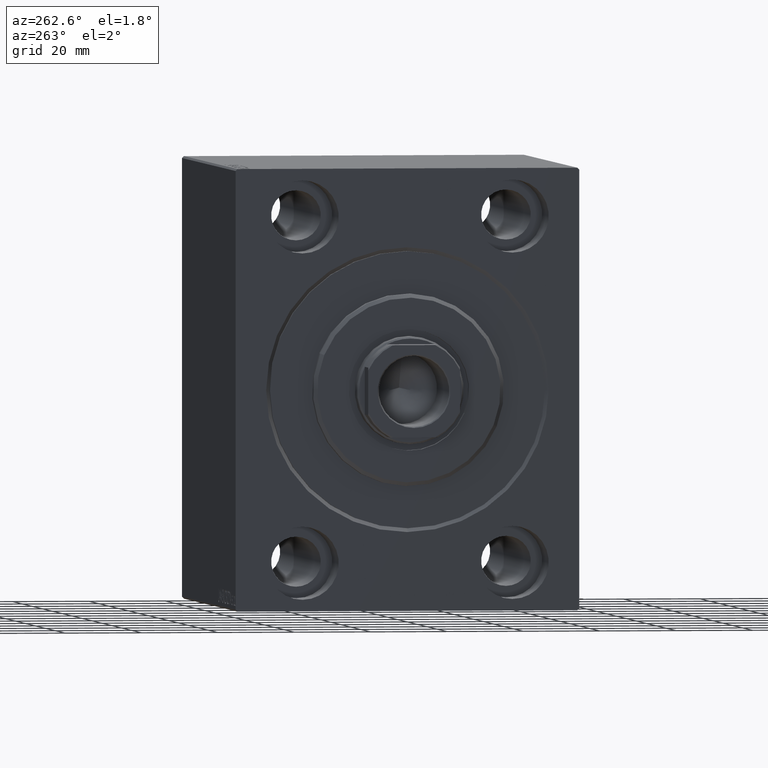
[diagram: clean part render]
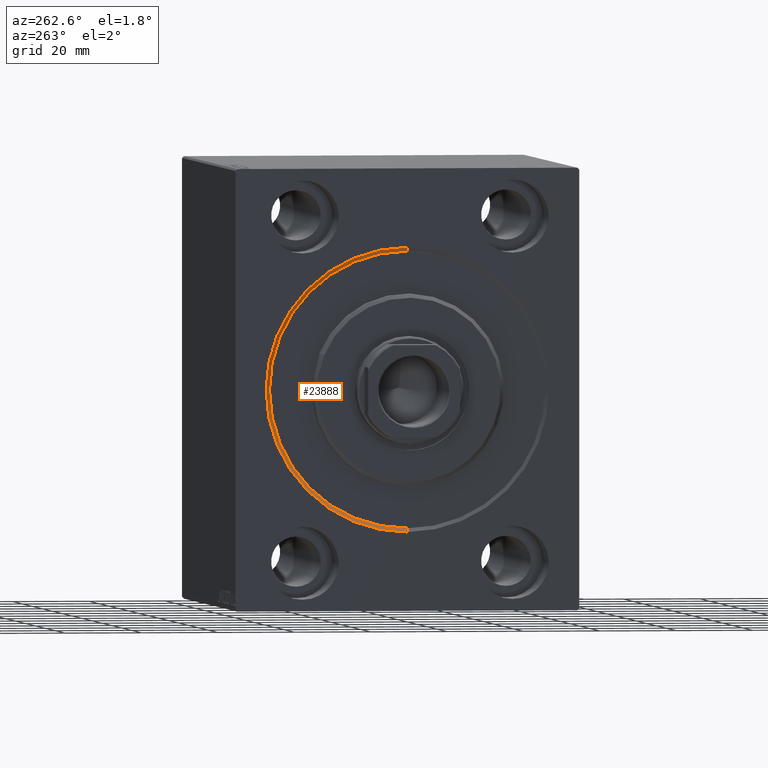
[diagram: same view with one face highlighted and labeled with its STEP entity id]
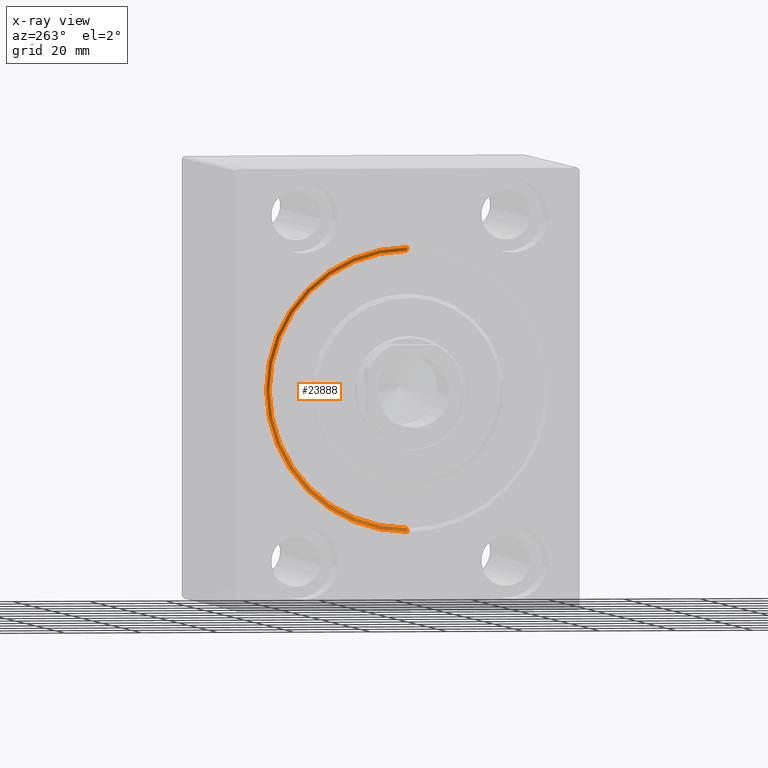
[diagram: x-ray of the same camera — body ghosted, the highlighted face saturated]
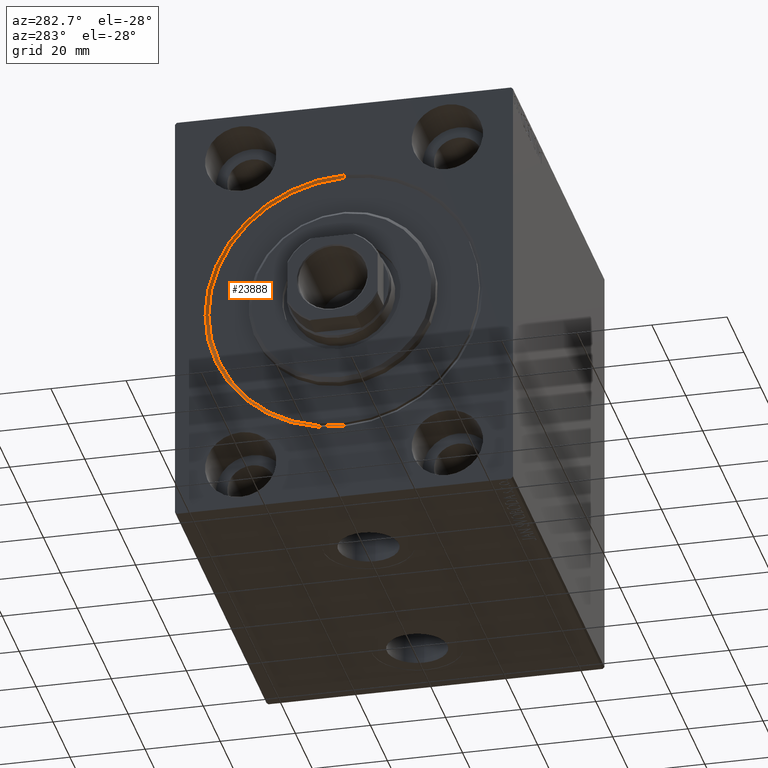
[diagram: same view with one face highlighted and labeled with its STEP entity id]
A machine part, auxiliary view. The second image highlights one B-rep face of the part: STEP entity #23888.
The next image is the same camera in x-ray: the body ghosted, the highlighted face saturated — about 0% of this face is hidden behind the body in this view.
A second angle (auxiliary view) of the same face is appended — the face is thin or edge-on in the first view.
In plain terms, the highlighted conical surface has half-angle 45 deg.
Its self-contained STEP definition (entity closure, byte-faithful):
#568 = VERTEX_POINT ( 'NONE', #18643 ) ;
#1053 = ORIENTED_EDGE ( 'NONE', *, *, #39583, .F. ) ;
#1643 = VERTEX_POINT ( 'NONE', #18598 ) ;
#1721 = LINE ( 'NONE', #16002, #2702 ) ;
#2438 = CARTESIAN_POINT ( 'NONE',  ( 1.000000000000021760, 0.000000000000000000, 36.00000000000000000 ) ) ;
#2702 = VECTOR ( 'NONE', #32278, 999.9999999999998863 ) ;
#2949 = LINE ( 'NONE', #20343, #29657 ) ;
#4815 = ORIENTED_EDGE ( 'NONE', *, *, #42299, .F. ) ;
#9734 = CARTESIAN_POINT ( 'NONE',  ( 1.000000000000021760, 0.000000000000000000, 0.000000000000000000 ) ) ;
#10111 = ORIENTED_EDGE ( 'NONE', *, *, #18586, .T. ) ;
#11062 = AXIS2_PLACEMENT_3D ( 'NONE', #33129, #15963, #43598 ) ;
#12527 = VERTEX_POINT ( 'NONE', #18178 ) ;
#13434 = DIRECTION ( 'NONE',  ( 0.000000000000000000, 0.000000000000000000, -1.000000000000000000 ) ) ;
#15963 = DIRECTION ( 'NONE',  ( 1.000000000000000000, 0.000000000000000000, 0.000000000000000000 ) ) ;
#16002 = CARTESIAN_POINT ( 'NONE',  ( 1.000000000000021760, 4.408728476930470856E-15, -36.00000000000000000 ) ) ;
#16206 = FACE_OUTER_BOUND ( 'NONE', #32812, .T. ) ;
#16772 = DIRECTION ( 'NONE',  ( -0.7071067811865425767, 0.000000000000000000, 0.7071067811865525687 ) ) ;
#18178 = CARTESIAN_POINT ( 'NONE',  ( 0.000000000000000000, 4.531193156845210737E-15, -37.00000000000003553 ) ) ;
#18586 = EDGE_CURVE ( 'NONE', #38569, #1643, #2949, .T. ) ;
#18598 = CARTESIAN_POINT ( 'NONE',  ( 0.000000000000000000, 0.000000000000000000, 37.00000000000003553 ) ) ;
#18643 = CARTESIAN_POINT ( 'NONE',  ( 1.000000000000021760, 4.408728476930470856E-15, -36.00000000000000000 ) ) ;
#20343 = CARTESIAN_POINT ( 'NONE',  ( 1.000000000000021760, 0.000000000000000000, 36.00000000000000000 ) ) ;
#21180 = ORIENTED_EDGE ( 'NONE', *, *, #22839, .F. ) ;
#22839 = EDGE_CURVE ( 'NONE', #12527, #1643, #28878, .T. ) ;
#23127 = DIRECTION ( 'NONE',  ( -1.000000000000000000, 0.000000000000000000, 0.000000000000000000 ) ) ;
#23142 = AXIS2_PLACEMENT_3D ( 'NONE', #9734, #23127, #35959 ) ;
#23888 = ADVANCED_FACE ( 'NONE', ( #16206 ), #26692, .F. ) ;
#26692 = CONICAL_SURFACE ( 'NONE', #23142, 36.00000000000000000, 0.7853981633974552734 ) ;
#28878 = CIRCLE ( 'NONE', #11062, 37.00000000000003553 ) ;
#29657 = VECTOR ( 'NONE', #16772, 999.9999999999998863 ) ;
#32278 = DIRECTION ( 'NONE',  ( -0.7071067811865425767, 8.659560562354994488E-17, -0.7071067811865525687 ) ) ;
#32692 = CIRCLE ( 'NONE', #35519, 36.00000000000000000 ) ;
#32812 = EDGE_LOOP ( 'NONE', ( #1053, #4815, #10111, #21180 ) ) ;
#33129 = CARTESIAN_POINT ( 'NONE',  ( 0.000000000000000000, 0.000000000000000000, 0.000000000000000000 ) ) ;
#35519 = AXIS2_PLACEMENT_3D ( 'NONE', #43969, #43749, #13434 ) ;
#35959 = DIRECTION ( 'NONE',  ( 0.000000000000000000, 0.000000000000000000, 1.000000000000000000 ) ) ;
#38569 = VERTEX_POINT ( 'NONE', #2438 ) ;
#39583 = EDGE_CURVE ( 'NONE', #568, #12527, #1721, .T. ) ;
#42299 = EDGE_CURVE ( 'NONE', #38569, #568, #32692, .T. ) ;
#43598 = DIRECTION ( 'NONE',  ( 0.000000000000000000, 0.000000000000000000, -1.000000000000000000 ) ) ;
#43749 = DIRECTION ( 'NONE',  ( -1.000000000000000000, 0.000000000000000000, 0.000000000000000000 ) ) ;
#43969 = CARTESIAN_POINT ( 'NONE',  ( 1.000000000000021760, 0.000000000000000000, 0.000000000000000000 ) ) ;